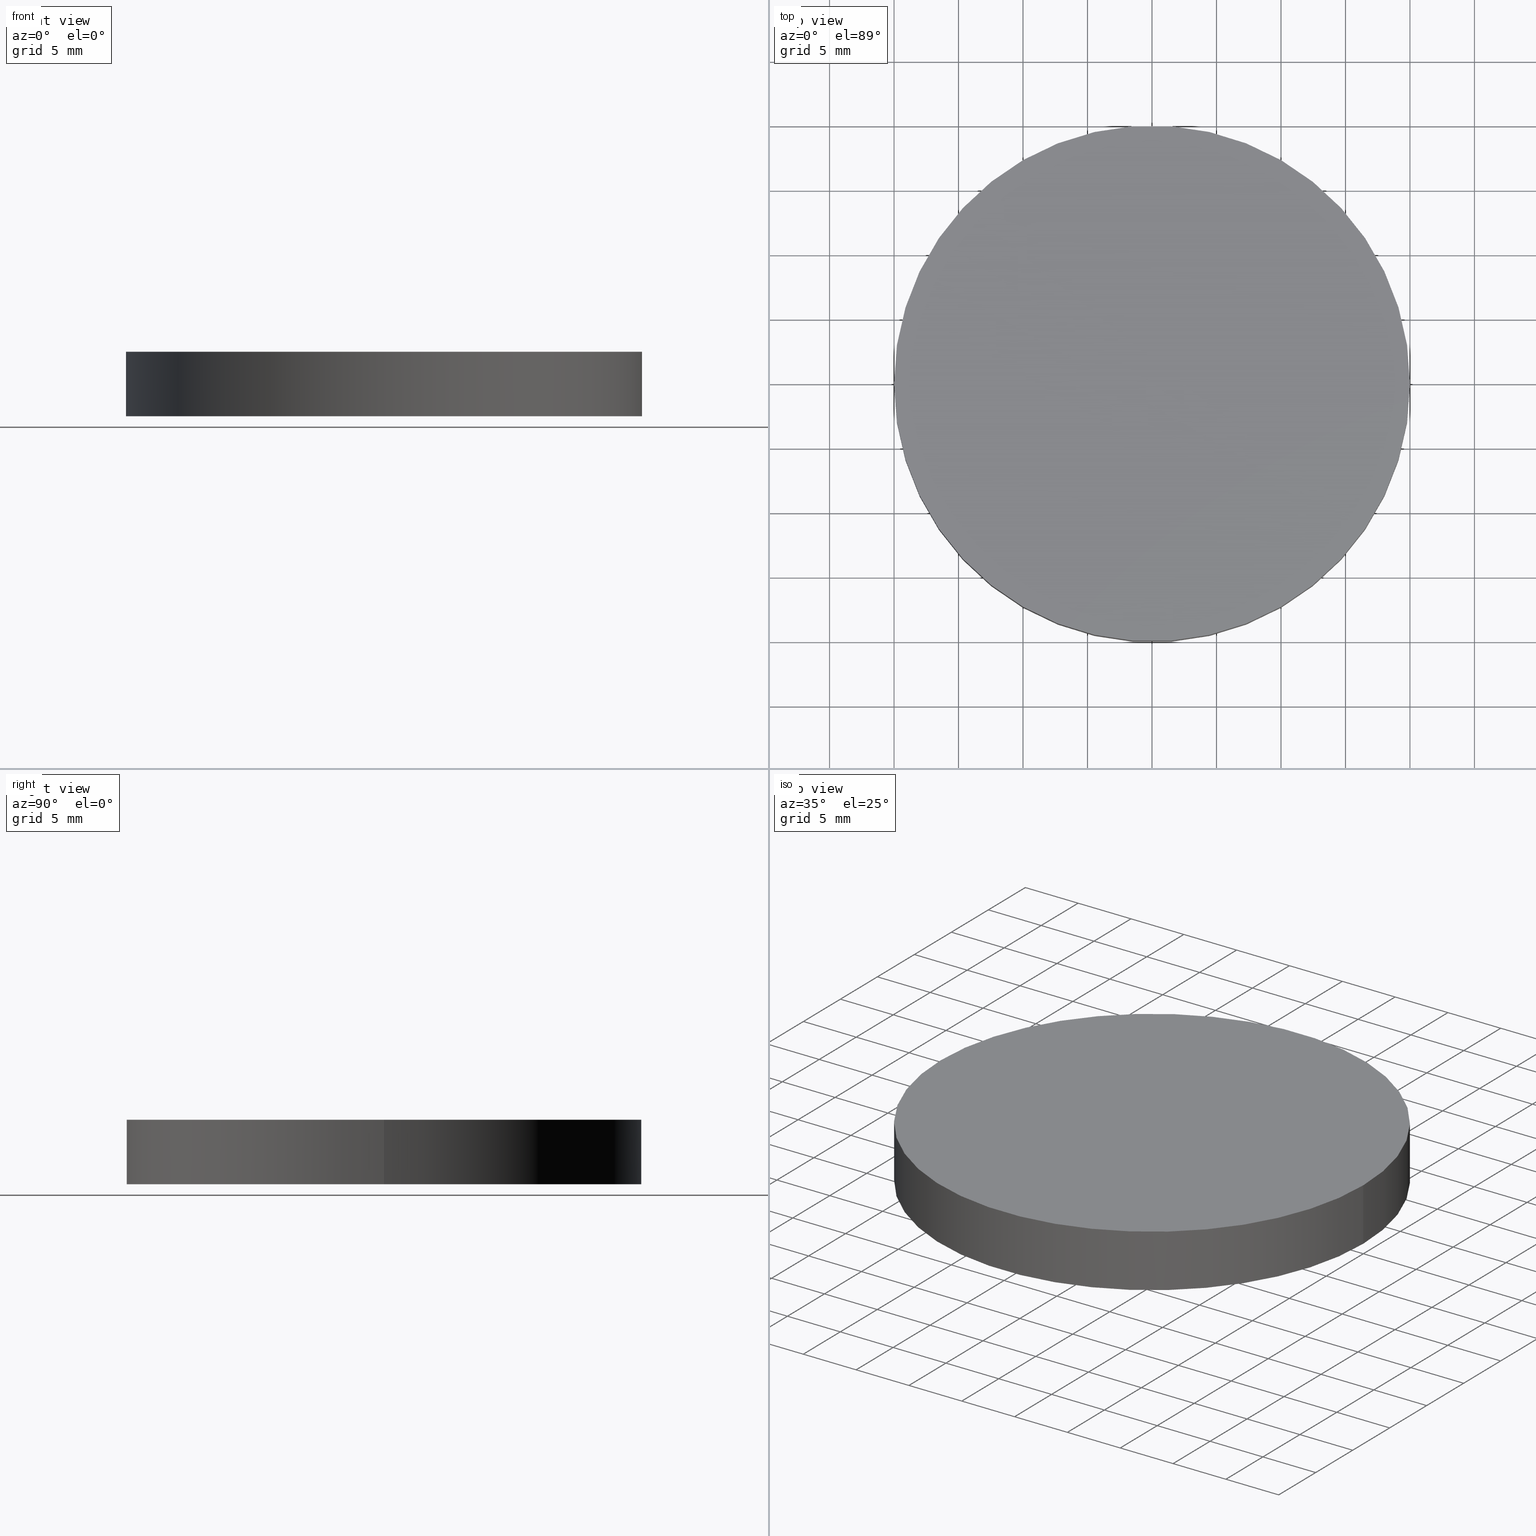
[diagram: canonical four-view strip — front | top / right | iso, engineering-drawing reading convention]
A machine part, canonical four-view strip (front | top / right | iso — engineering-drawing reading convention). The complete STEP part file that produces these views, byte-faithful:
ISO-10303-21;
HEADER;
FILE_DESCRIPTION (( 'STEP AP214' ),
    '1' );
FILE_NAME ('190136.STEP',
    '2019-07-17T09:17:55',
    ( 'user' ),
    ( '΢���й�' ),
    'SwSTEP 2.0',
    'SolidWorks 2016',
    '' );
FILE_SCHEMA (( 'AUTOMOTIVE_DESIGN' ));
ENDSEC;

DATA;
#1 = DIRECTION ( 'NONE',  ( 0.0000000000000000000, 0.0000000000000000000, 1.000000000000000000 ) ) ;
#2 = EDGE_LOOP ( 'NONE', ( #54, #85 ) ) ;
#3 = ADVANCED_BREP_SHAPE_REPRESENTATION ( '190136', ( #80, #7 ), #61 ) ;
#4 = CIRCLE ( 'NONE', #63, 20.00000000000000000 ) ;
#5 = FILL_AREA_STYLE_COLOUR ( '', #94 ) ;
#6 = SURFACE_SIDE_STYLE ('',( #57 ) ) ;
#7 = AXIS2_PLACEMENT_3D ( 'NONE', #53, #131, #102 ) ;
#8 = ORIENTED_EDGE ( 'NONE', *, *, #45, .F. ) ;
#9 = CARTESIAN_POINT ( 'NONE',  ( 0.0000000000000000000, 0.0000000000000000000, 5.000000000000000000 ) ) ;
#10 = APPLICATION_CONTEXT ( 'automotive_design' ) ;
#11 = DIRECTION ( 'NONE',  ( 1.000000000000000000, 0.0000000000000000000, 0.0000000000000000000 ) ) ;
#12 = DIRECTION ( 'NONE',  ( 1.000000000000000000, 0.0000000000000000000, -0.0000000000000000000 ) ) ;
#13 = EDGE_CURVE ( 'NONE', #68, #113, #4, .T. ) ;
#14 = DIRECTION ( 'NONE',  ( 1.000000000000000000, 0.0000000000000000000, -0.0000000000000000000 ) ) ;
#15 = PRODUCT_DEFINITION ( 'δ֪', '', #23, #93 ) ;
#16 = DIRECTION ( 'NONE',  ( -1.000000000000000000, 0.0000000000000000000, 0.0000000000000000000 ) ) ;
#17 =( NAMED_UNIT ( * ) SI_UNIT ( $, .STERADIAN. ) SOLID_ANGLE_UNIT ( ) );
#18 = ORIENTED_EDGE ( 'NONE', *, *, #26, .T. ) ;
#19 = DIRECTION ( 'NONE',  ( 1.000000000000000000, 0.0000000000000000000, 0.0000000000000000000 ) ) ;
#20 = CIRCLE ( 'NONE', #107, 20.00000000000000000 ) ;
#21 = PLANE ( 'NONE',  #98 ) ;
#22 = ADVANCED_FACE ( 'NONE', ( #40 ), #21, .F. ) ;
#23 = PRODUCT_DEFINITION_FORMATION_WITH_SPECIFIED_SOURCE ( '�κ�', '', #114, .NOT_KNOWN. ) ;
#24 = CYLINDRICAL_SURFACE ( 'NONE', #105, 20.00000000000000000 ) ;
#25 = UNCERTAINTY_MEASURE_WITH_UNIT (LENGTH_MEASURE( 1.000000000000000100E-005 ), #104, 'distance_accuracy_value', 'NONE');
#26 = EDGE_CURVE ( 'NONE', #48, #113, #59, .T. ) ;
#27 = STYLED_ITEM ( 'NONE', ( #108 ), #80 ) ;
#28 = AXIS2_PLACEMENT_3D ( 'NONE', #82, #125, #66 ) ;
#29 = CARTESIAN_POINT ( 'NONE',  ( -20.00000000000000000, 0.0000000000000000000, 5.000000000000000000 ) ) ;
#30 = CIRCLE ( 'NONE', #28, 20.00000000000000000 ) ;
#31 = APPLICATION_CONTEXT ( 'automotive_design' ) ;
#32 = ORIENTED_EDGE ( 'NONE', *, *, #65, .T. ) ;
#33 = PRESENTATION_STYLE_ASSIGNMENT (( #88 ) ) ;
#34 = DIRECTION ( 'NONE',  ( -0.0000000000000000000, -0.0000000000000000000, -1.000000000000000000 ) ) ;
#35 = FACE_OUTER_BOUND ( 'NONE', #118, .T. ) ;
#36 = SURFACE_STYLE_USAGE ( .BOTH. , #6 ) ;
#37 = ORIENTED_EDGE ( 'NONE', *, *, #13, .T. ) ;
#38 = DIRECTION ( 'NONE',  ( -0.0000000000000000000, -0.0000000000000000000, -1.000000000000000000 ) ) ;
#39 = ORIENTED_EDGE ( 'NONE', *, *, #58, .F. ) ;
#40 = FACE_OUTER_BOUND ( 'NONE', #81, .T. ) ;
#41 = PRODUCT_RELATED_PRODUCT_CATEGORY ( 'part', '', ( #114 ) ) ;
#42 = UNCERTAINTY_MEASURE_WITH_UNIT (LENGTH_MEASURE( 1.000000000000000100E-005 ), #87, 'distance_accuracy_value', 'NONE');
#43 = CARTESIAN_POINT ( 'NONE',  ( 20.00000000000000000, 2.449293598294706500E-015, 5.000000000000000000 ) ) ;
#44 = CARTESIAN_POINT ( 'NONE',  ( 0.0000000000000000000, 0.0000000000000000000, 5.000000000000000000 ) ) ;
#45 = EDGE_CURVE ( 'NONE', #92, #48, #20, .T. ) ;
#46 = APPLICATION_PROTOCOL_DEFINITION ( 'draft international standard', 'automotive_design', 1998, #31 ) ;
#47 = DIRECTION ( 'NONE',  ( 1.000000000000000000, 0.0000000000000000000, 0.0000000000000000000 ) ) ;
#48 = VERTEX_POINT ( 'NONE', #119 ) ;
#49 = DIRECTION ( 'NONE',  ( 0.0000000000000000000, 0.0000000000000000000, 1.000000000000000000 ) ) ;
#50 =( NAMED_UNIT ( * ) SI_UNIT ( $, .STERADIAN. ) SOLID_ANGLE_UNIT ( ) );
#51 = EDGE_CURVE ( 'NONE', #48, #92, #134, .T. ) ;
#52 = DIRECTION ( 'NONE',  ( -1.000000000000000000, 0.0000000000000000000, 0.0000000000000000000 ) ) ;
#53 = CARTESIAN_POINT ( 'NONE',  ( 0.0000000000000000000, 0.0000000000000000000, 0.0000000000000000000 ) ) ;
#54 = ORIENTED_EDGE ( 'NONE', *, *, #51, .T. ) ;
#55 = SURFACE_SIDE_STYLE ('',( #72 ) ) ;
#56 = FILL_AREA_STYLE_COLOUR ( '', #76 ) ;
#57 = SURFACE_STYLE_FILL_AREA ( #78 ) ;
#58 = EDGE_CURVE ( 'NONE', #92, #68, #132, .T. ) ;
#59 = LINE ( 'NONE', #29, #62 ) ;
#60 =( NAMED_UNIT ( * ) PLANE_ANGLE_UNIT ( ) SI_UNIT ( $, .RADIAN. ) );
#61 =( GEOMETRIC_REPRESENTATION_CONTEXT ( 3 ) GLOBAL_UNCERTAINTY_ASSIGNED_CONTEXT ( ( #25 ) ) GLOBAL_UNIT_ASSIGNED_CONTEXT ( ( #104, #60, #17 ) ) REPRESENTATION_CONTEXT ( 'NONE', 'WORKASPACE' ) );
#62 = VECTOR ( 'NONE', #34, 1000.000000000000000 ) ;
#63 = AXIS2_PLACEMENT_3D ( 'NONE', #84, #122, #11 ) ;
#64 =( NAMED_UNIT ( * ) PLANE_ANGLE_UNIT ( ) SI_UNIT ( $, .RADIAN. ) );
#65 = EDGE_CURVE ( 'NONE', #113, #68, #30, .T. ) ;
#66 = DIRECTION ( 'NONE',  ( 1.000000000000000000, 0.0000000000000000000, 0.0000000000000000000 ) ) ;
#67 = AXIS2_PLACEMENT_3D ( 'NONE', #9, #49, #19 ) ;
#68 = VERTEX_POINT ( 'NONE', #140 ) ;
#69 = DIRECTION ( 'NONE',  ( 0.0000000000000000000, 0.0000000000000000000, 1.000000000000000000 ) ) ;
#70 = ORIENTED_EDGE ( 'NONE', *, *, #26, .F. ) ;
#71 =( NAMED_UNIT ( * ) PLANE_ANGLE_UNIT ( ) SI_UNIT ( $, .RADIAN. ) );
#72 = SURFACE_STYLE_FILL_AREA ( #75 ) ;
#73 = EDGE_LOOP ( 'NONE', ( #39, #121, #18, #32 ) ) ;
#74 = APPLICATION_PROTOCOL_DEFINITION ( 'draft international standard', 'automotive_design', 1998, #10 ) ;
#75 = FILL_AREA_STYLE ('',( #5 ) ) ;
#76 = COLOUR_RGB ( '',1.000000000000000000, 1.000000000000000000, 1.000000000000000000 ) ;
#77 = AXIS2_PLACEMENT_3D ( 'NONE', #89, #79, #16 ) ;
#78 = FILL_AREA_STYLE ('',( #56 ) ) ;
#79 = DIRECTION ( 'NONE',  ( -0.0000000000000000000, -0.0000000000000000000, -1.000000000000000000 ) ) ;
#80 = MANIFOLD_SOLID_BREP ( '͹̨-����1', #111 ) ;
#81 = EDGE_LOOP ( 'NONE', ( #109, #106 ) ) ;
#82 = CARTESIAN_POINT ( 'NONE',  ( 0.0000000000000000000, 0.0000000000000000000, 0.0000000000000000000 ) ) ;
#83 = AXIS2_PLACEMENT_3D ( 'NONE', #44, #1, #12 ) ;
#84 = CARTESIAN_POINT ( 'NONE',  ( 0.0000000000000000000, 0.0000000000000000000, 0.0000000000000000000 ) ) ;
#85 = ORIENTED_EDGE ( 'NONE', *, *, #45, .T. ) ;
#86 = CARTESIAN_POINT ( 'NONE',  ( 0.0000000000000000000, 0.0000000000000000000, 0.0000000000000000000 ) ) ;
#87 =( LENGTH_UNIT ( ) NAMED_UNIT ( * ) SI_UNIT ( .MILLI., .METRE. ) );
#88 = SURFACE_STYLE_USAGE ( .BOTH. , #55 ) ;
#89 = CARTESIAN_POINT ( 'NONE',  ( 0.0000000000000000000, 0.0000000000000000000, 5.000000000000000000 ) ) ;
#90 = VECTOR ( 'NONE', #127, 1000.000000000000000 ) ;
#91 = STYLED_ITEM ( 'NONE', ( #33 ), #3 ) ;
#92 = VERTEX_POINT ( 'NONE', #43 ) ;
#93 = PRODUCT_DEFINITION_CONTEXT ( 'detailed design', #10, 'design' ) ;
#94 = COLOUR_RGB ( '',1.000000000000000000, 1.000000000000000000, 1.000000000000000000 ) ;
#95 = PRESENTATION_LAYER_ASSIGNMENT (  '', '', ( #27 ) ) ;
#96 =( NAMED_UNIT ( * ) SI_UNIT ( $, .STERADIAN. ) SOLID_ANGLE_UNIT ( ) );
#97 = CARTESIAN_POINT ( 'NONE',  ( 20.00000000000000000, 2.449293598294706500E-015, 5.000000000000000000 ) ) ;
#98 = AXIS2_PLACEMENT_3D ( 'NONE', #86, #133, #14 ) ;
#99 = CYLINDRICAL_SURFACE ( 'NONE', #77, 20.00000000000000000 ) ;
#100 = FACE_OUTER_BOUND ( 'NONE', #2, .T. ) ;
#101 =( GEOMETRIC_REPRESENTATION_CONTEXT ( 3 ) GLOBAL_UNCERTAINTY_ASSIGNED_CONTEXT ( ( #42 ) ) GLOBAL_UNIT_ASSIGNED_CONTEXT ( ( #87, #64, #50 ) ) REPRESENTATION_CONTEXT ( 'NONE', 'WORKASPACE' ) );
#102 = DIRECTION ( 'NONE',  ( 1.000000000000000000, 0.0000000000000000000, 0.0000000000000000000 ) ) ;
#103 = ORIENTED_EDGE ( 'NONE', *, *, #58, .T. ) ;
#104 =( LENGTH_UNIT ( ) NAMED_UNIT ( * ) SI_UNIT ( .MILLI., .METRE. ) );
#105 = AXIS2_PLACEMENT_3D ( 'NONE', #130, #38, #52 ) ;
#106 = ORIENTED_EDGE ( 'NONE', *, *, #13, .F. ) ;
#107 = AXIS2_PLACEMENT_3D ( 'NONE', #136, #69, #47 ) ;
#108 = PRESENTATION_STYLE_ASSIGNMENT (( #36 ) ) ;
#109 = ORIENTED_EDGE ( 'NONE', *, *, #65, .F. ) ;
#110 = PLANE ( 'NONE',  #83 ) ;
#111 = CLOSED_SHELL ( 'NONE', ( #129, #117, #126, #22 ) ) ;
#112 = MECHANICAL_DESIGN_GEOMETRIC_PRESENTATION_REPRESENTATION (  '', ( #27 ), #101 ) ;
#113 = VERTEX_POINT ( 'NONE', #138 ) ;
#114 = PRODUCT ( '190136', '190136', '', ( #137 ) ) ;
#115 =( LENGTH_UNIT ( ) NAMED_UNIT ( * ) SI_UNIT ( .MILLI., .METRE. ) );
#116 = PRESENTATION_LAYER_ASSIGNMENT (  '', '', ( #91 ) ) ;
#117 = ADVANCED_FACE ( 'NONE', ( #123 ), #99, .T. ) ;
#118 = EDGE_LOOP ( 'NONE', ( #8, #103, #37, #70 ) ) ;
#119 = CARTESIAN_POINT ( 'NONE',  ( -20.00000000000000000, 0.0000000000000000000, 5.000000000000000000 ) ) ;
#120 = UNCERTAINTY_MEASURE_WITH_UNIT (LENGTH_MEASURE( 1.000000000000000100E-005 ), #115, 'distance_accuracy_value', 'NONE');
#121 = ORIENTED_EDGE ( 'NONE', *, *, #51, .F. ) ;
#122 = DIRECTION ( 'NONE',  ( 0.0000000000000000000, 0.0000000000000000000, 1.000000000000000000 ) ) ;
#123 = FACE_OUTER_BOUND ( 'NONE', #73, .T. ) ;
#124 = MECHANICAL_DESIGN_GEOMETRIC_PRESENTATION_REPRESENTATION (  '', ( #91 ), #128 ) ;
#125 = DIRECTION ( 'NONE',  ( 0.0000000000000000000, 0.0000000000000000000, 1.000000000000000000 ) ) ;
#126 = ADVANCED_FACE ( 'NONE', ( #100 ), #110, .T. ) ;
#127 = DIRECTION ( 'NONE',  ( -0.0000000000000000000, -0.0000000000000000000, -1.000000000000000000 ) ) ;
#128 =( GEOMETRIC_REPRESENTATION_CONTEXT ( 3 ) GLOBAL_UNCERTAINTY_ASSIGNED_CONTEXT ( ( #120 ) ) GLOBAL_UNIT_ASSIGNED_CONTEXT ( ( #115, #71, #96 ) ) REPRESENTATION_CONTEXT ( 'NONE', 'WORKASPACE' ) );
#129 = ADVANCED_FACE ( 'NONE', ( #35 ), #24, .T. ) ;
#130 = CARTESIAN_POINT ( 'NONE',  ( 0.0000000000000000000, 0.0000000000000000000, 5.000000000000000000 ) ) ;
#131 = DIRECTION ( 'NONE',  ( 0.0000000000000000000, 0.0000000000000000000, 1.000000000000000000 ) ) ;
#132 = LINE ( 'NONE', #97, #90 ) ;
#133 = DIRECTION ( 'NONE',  ( 0.0000000000000000000, 0.0000000000000000000, 1.000000000000000000 ) ) ;
#134 = CIRCLE ( 'NONE', #67, 20.00000000000000000 ) ;
#135 = SHAPE_DEFINITION_REPRESENTATION ( #139, #3 ) ;
#136 = CARTESIAN_POINT ( 'NONE',  ( 0.0000000000000000000, 0.0000000000000000000, 5.000000000000000000 ) ) ;
#137 = PRODUCT_CONTEXT ( 'NONE', #31, 'mechanical' ) ;
#138 = CARTESIAN_POINT ( 'NONE',  ( -20.00000000000000000, 0.0000000000000000000, 0.0000000000000000000 ) ) ;
#139 = PRODUCT_DEFINITION_SHAPE ( 'NONE', 'NONE',  #15 ) ;
#140 = CARTESIAN_POINT ( 'NONE',  ( 20.00000000000000000, 2.449293598294706500E-015, 0.0000000000000000000 ) ) ;
ENDSEC;
END-ISO-10303-21;
